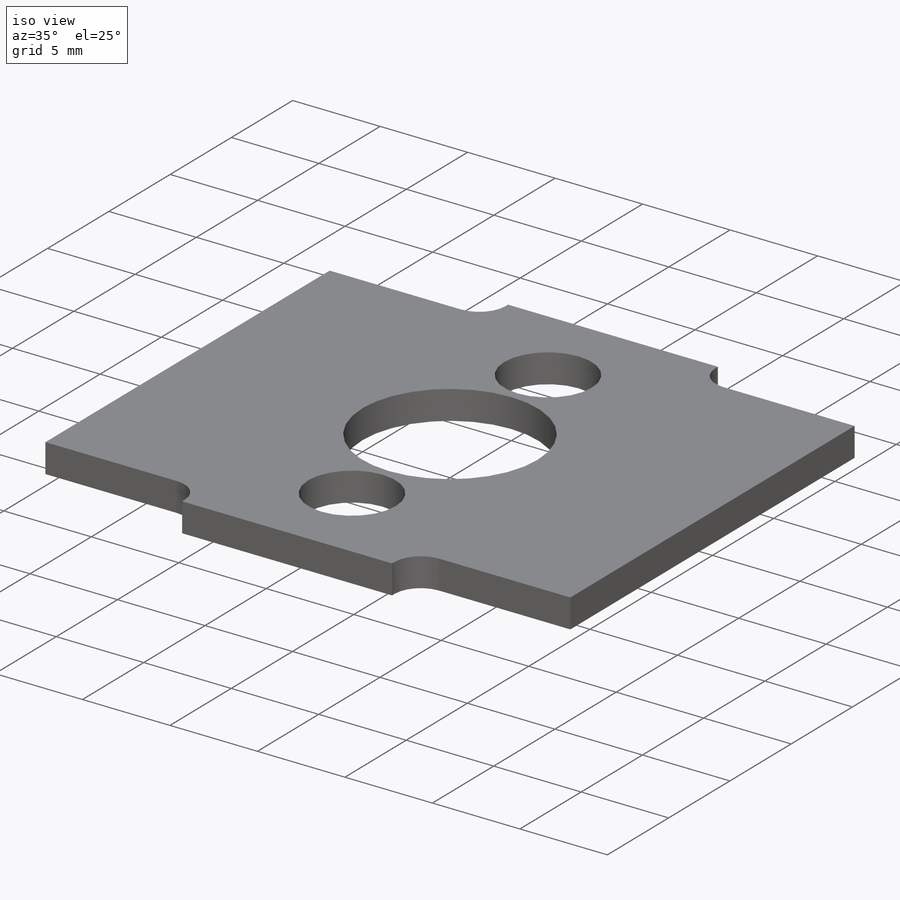
[diagram: iso view]
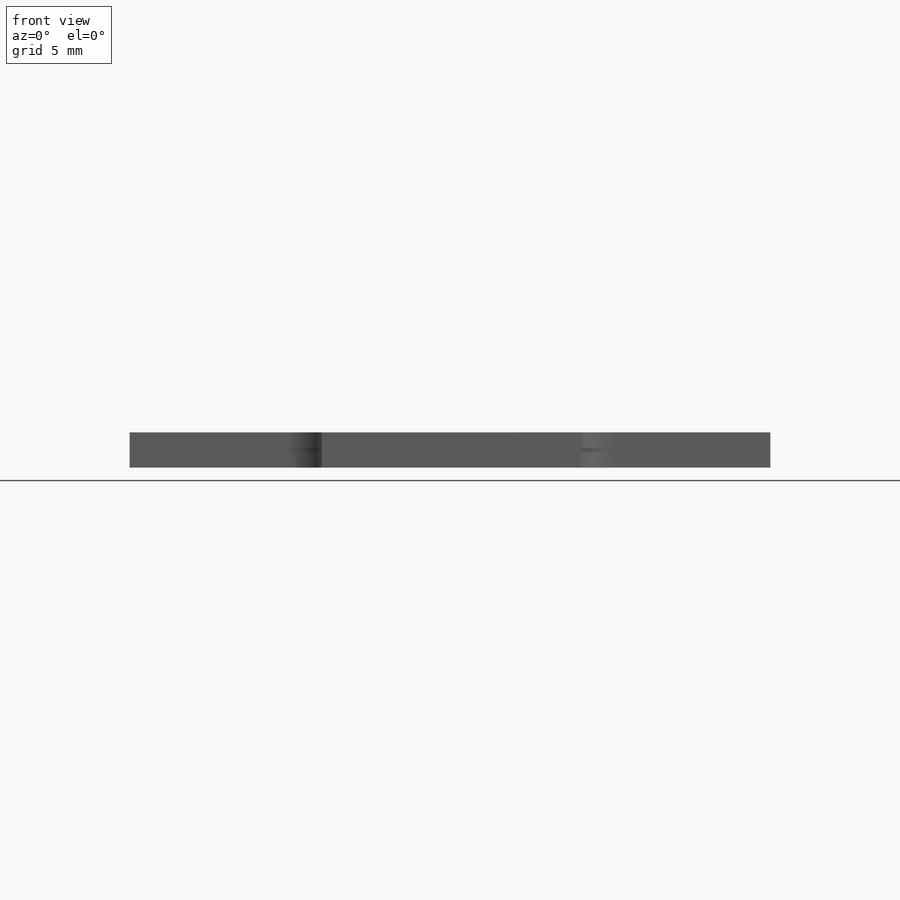
[diagram: front view]
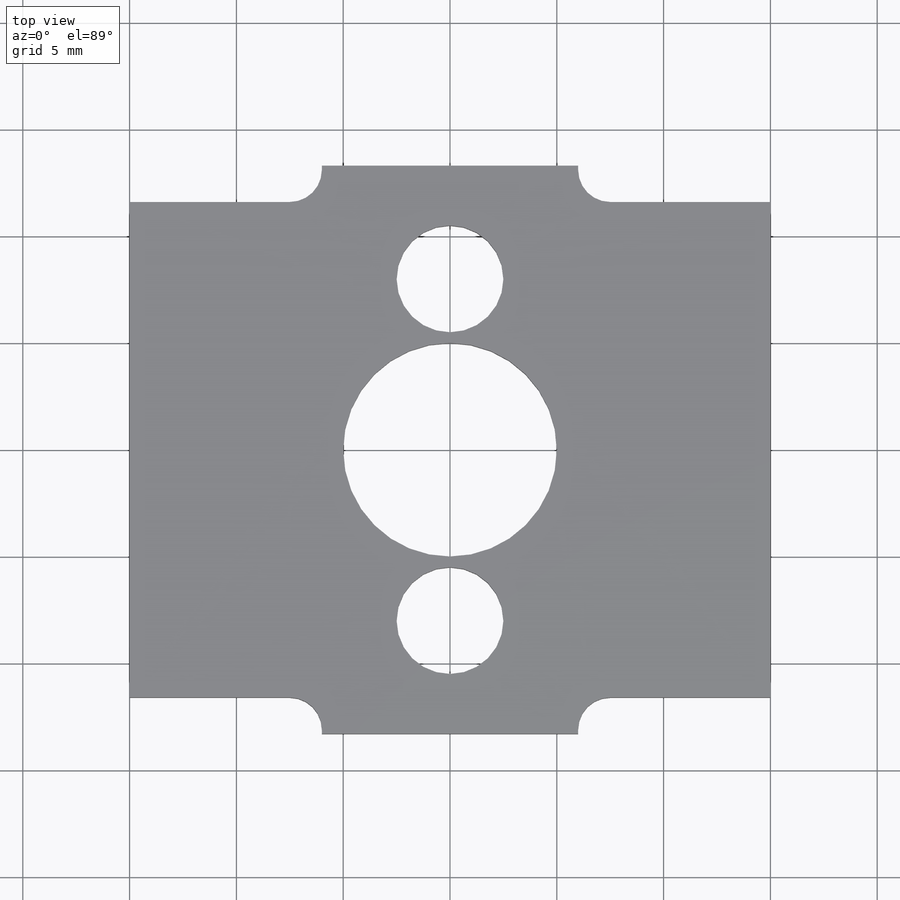
[diagram: top view]
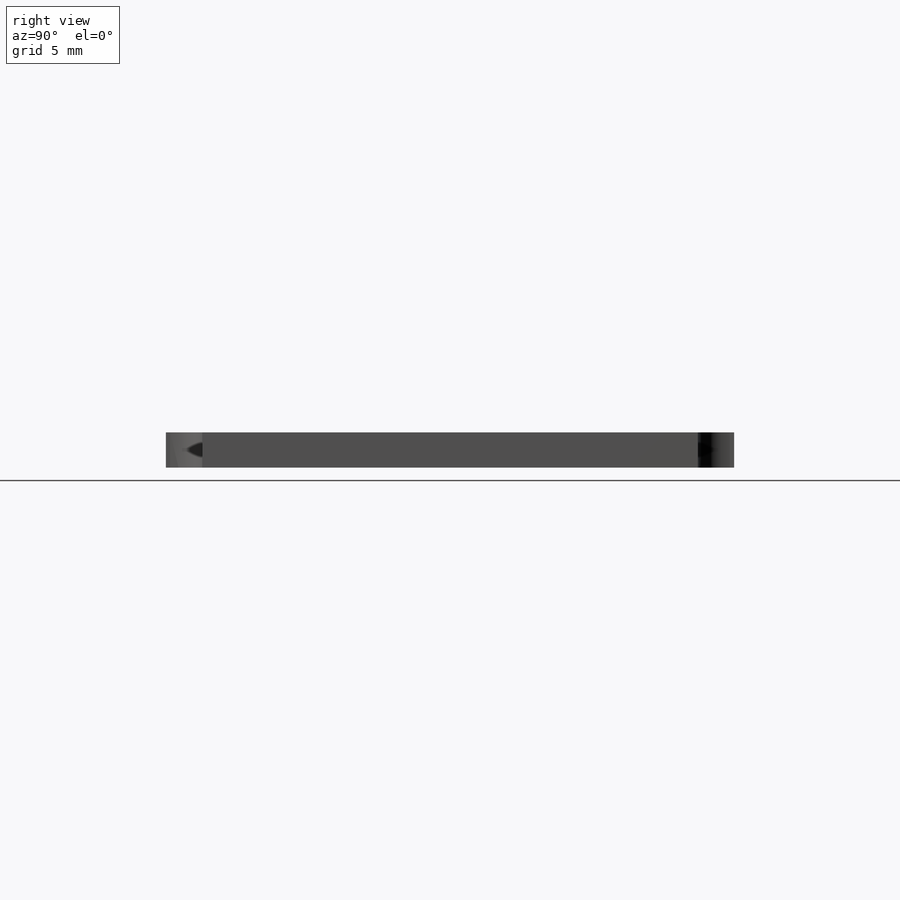
[diagram: right view]
SOLIDWORKS PART (.sldprt)
format: sldprt  version: not decoded by parser v0  size: 737,792 bytes
history: native  units: mm
features: plane x3, sketch x3, extrude x2, material x1, fillet x1, cut_extrude x1 (+9 scaffold rows collapsed)
feature tree (20):
  scaffold x9  (default folders/planes/origin — collapsed)
  material  "PVC hart"
  plane  "Ebene vorne"
  plane  "Ebene oben"
  plane  "Ebene rechts"
  sketch  "Skizze1"  dims[c1.D5=10.05mm c1.D6=2.5mm c1.D7=2.5mm c1.D8=1.25mm c1.D9=16.0mm c1.D11=5.025mm c1.D3=5.025mm c2.D6=8.0mm c2.D13=16.0mm c2.D1=59.0mm c2.D2=41.0mm c2.D3=5.1mm c2.D4=12.0mm c2.D5=45.0mm c3.D6=3.4mm c3.D1=1.7mm c3.D2=12.0mm c3.D3=41.0mm c4.D1=1.7mm c4.D4=30.0mm c4.D6=8.0mm c4.D10=~15.394604mm c5.D10=30.0deg c5.D12=6.5mm c5.D4=9.0mm c5.D9=26.6mm c5.D11=41.0mm c6.D4=25.0mm c6.D5=3.4mm c6.D3=16.0mm c6.D6=~9.831746mm c7.D4=13.3mm c7.D6=15.0mm c7.D8=1.7mm c8.D4=15.0mm c8.D6=3.4mm c9.D4=30.0mm c9.D5=23.2mm c10.D4=30.0mm]
  extrude  "Aufsatz-Linear austragen1"  Depth=1.65mm
  fillet  "Verrundung1"  Radius=1.5mm
  sketch  "Skizze3"  dims[D1=8.0mm]
  extrude  "Aufsatz-Linear austragen2"  [1 undecoded]
  sketch  "Skizze4"  dims[D1=5.0mm]
  cut_extrude  "Schnitt-Linear austragen1"  [1 undecoded]
decode coverage: 5 of 7 modeling features carry decoded parameters
note: ~ marks probable driven/reference dimensions
note: 2 parameter values undecoded
note: suppression state not decoded; provenance and decode notes live in map.json
